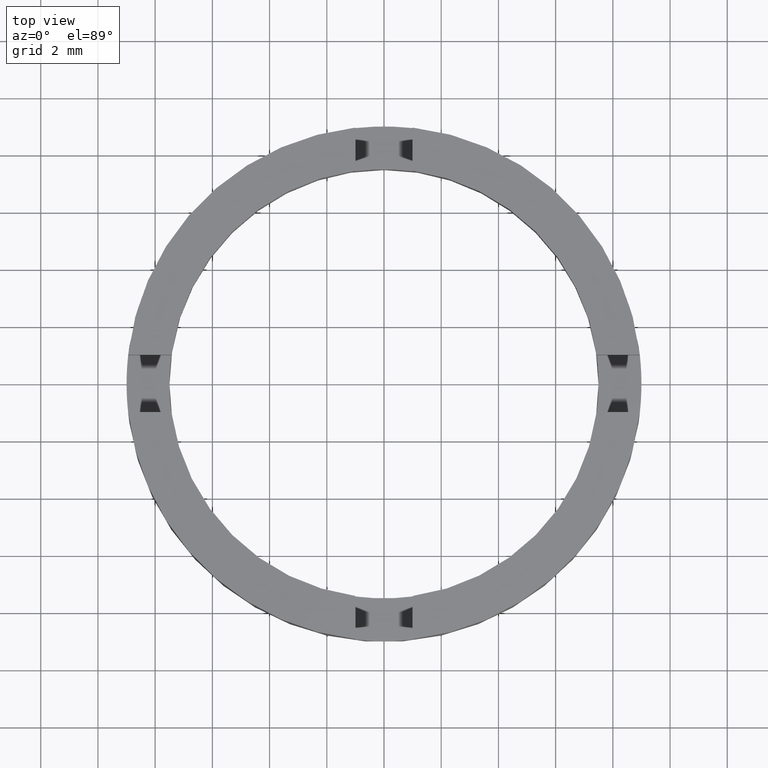
[diagram: clean part render]
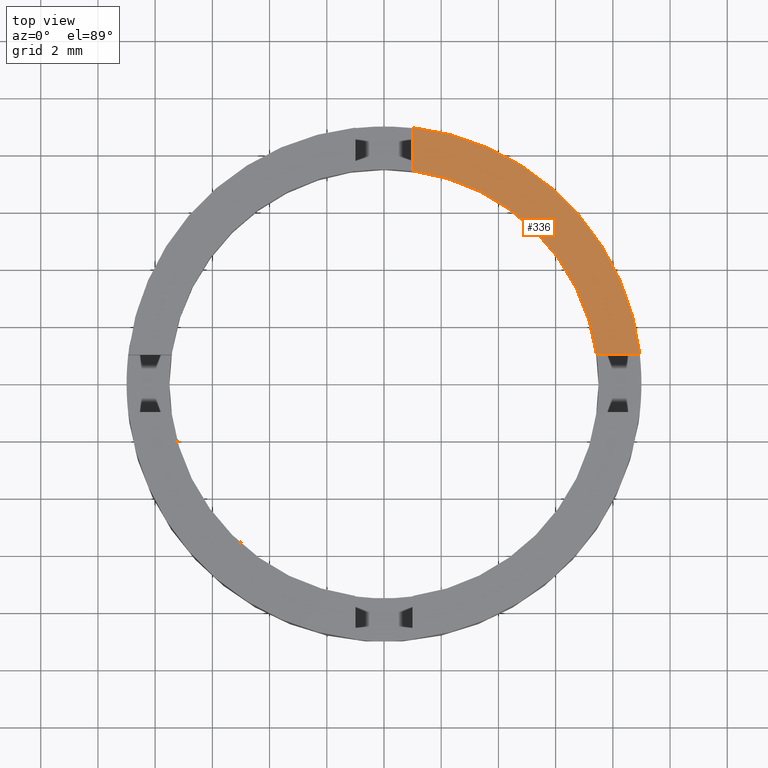
[diagram: same view with one face highlighted and labeled with its STEP entity id]
A machine part, top view. The second image highlights one B-rep face of the part: STEP entity #336.
In plain terms, the highlighted planar face has unit normal (0, 0, 1).
Its self-contained STEP definition (entity closure, byte-faithful):
#7 = CARTESIAN_POINT ( 'NONE',  ( 0.000000000000000000, 0.000000000000000000, 2.500000000000000000 ) ) ;
#47 = DIRECTION ( 'NONE',  ( 0.000000000000000000, 0.000000000000000000, 1.000000000000000000 ) ) ;
#78 = ORIENTED_EDGE ( 'NONE', *, *, #538, .F. ) ;
#79 = DIRECTION ( 'NONE',  ( 1.000000000000000000, 0.000000000000000000, -0.000000000000000000 ) ) ;
#85 = EDGE_CURVE ( 'NONE', #426, #498, #198, .T. ) ;
#108 = ORIENTED_EDGE ( 'NONE', *, *, #371, .T. ) ;
#129 = CARTESIAN_POINT ( 'NONE',  ( 0.000000000000000000, 0.000000000000000000, 2.500000000000000000 ) ) ;
#133 = LINE ( 'NONE', #308, #631 ) ;
#198 = CIRCLE ( 'NONE', #761, 7.500000000000000000 ) ;
#212 = DIRECTION ( 'NONE',  ( 1.000000000000000000, 0.000000000000000000, 0.000000000000000000 ) ) ;
#258 = AXIS2_PLACEMENT_3D ( 'NONE', #557, #722, #79 ) ;
#308 = CARTESIAN_POINT ( 'NONE',  ( 1.000000000000001332, 0.000000000000000000, 2.500000000000000000 ) ) ;
#319 = CARTESIAN_POINT ( 'NONE',  ( 8.944271909999160997, 0.9999999999999655831, 2.500000000000000000 ) ) ;
#323 = EDGE_LOOP ( 'NONE', ( #78, #419, #108, #607 ) ) ;
#336 = ADVANCED_FACE ( 'NONE', ( #738 ), #395, .T. ) ;
#371 = EDGE_CURVE ( 'NONE', #426, #598, #731, .T. ) ;
#395 = PLANE ( 'NONE',  #258 ) ;
#399 = CIRCLE ( 'NONE', #745, 9.000000000000000000 ) ;
#403 = DIRECTION ( 'NONE',  ( 0.000000000000000000, 1.000000000000000000, -0.000000000000000000 ) ) ;
#419 = ORIENTED_EDGE ( 'NONE', *, *, #85, .F. ) ;
#426 = VERTEX_POINT ( 'NONE', #620 ) ;
#459 = DIRECTION ( 'NONE',  ( 1.000000000000000000, -3.734474149672293138E-15, 0.000000000000000000 ) ) ;
#464 = VECTOR ( 'NONE', #459, 1000.000000000000000 ) ;
#481 = CARTESIAN_POINT ( 'NONE',  ( 1.000000000000001332, 7.433034373659253013, 2.500000000000000000 ) ) ;
#495 = VERTEX_POINT ( 'NONE', #641 ) ;
#498 = VERTEX_POINT ( 'NONE', #481 ) ;
#538 = EDGE_CURVE ( 'NONE', #498, #495, #133, .T. ) ;
#557 = CARTESIAN_POINT ( 'NONE',  ( 0.000000000000000000, 0.000000000000000000, 2.500000000000000000 ) ) ;
#598 = VERTEX_POINT ( 'NONE', #319 ) ;
#607 = ORIENTED_EDGE ( 'NONE', *, *, #755, .T. ) ;
#620 = CARTESIAN_POINT ( 'NONE',  ( 7.433034373659256566, 0.9999999999999711342, 2.500000000000000000 ) ) ;
#631 = VECTOR ( 'NONE', #403, 1000.000000000000000 ) ;
#641 = CARTESIAN_POINT ( 'NONE',  ( 1.000000000000001332, 8.944271909999157444, 2.500000000000000000 ) ) ;
#696 = DIRECTION ( 'NONE',  ( 0.000000000000000000, 0.000000000000000000, 1.000000000000000000 ) ) ;
#715 = DIRECTION ( 'NONE',  ( 1.000000000000000000, 0.000000000000000000, 0.000000000000000000 ) ) ;
#722 = DIRECTION ( 'NONE',  ( 0.000000000000000000, 0.000000000000000000, 1.000000000000000000 ) ) ;
#731 = LINE ( 'NONE', #754, #464 ) ;
#738 = FACE_OUTER_BOUND ( 'NONE', #323, .T. ) ;
#745 = AXIS2_PLACEMENT_3D ( 'NONE', #129, #696, #212 ) ;
#754 = CARTESIAN_POINT ( 'NONE',  ( 3.734474149672289194E-15, 0.9999999999999988898, 2.500000000000000000 ) ) ;
#755 = EDGE_CURVE ( 'NONE', #598, #495, #399, .T. ) ;
#761 = AXIS2_PLACEMENT_3D ( 'NONE', #7, #47, #715 ) ;